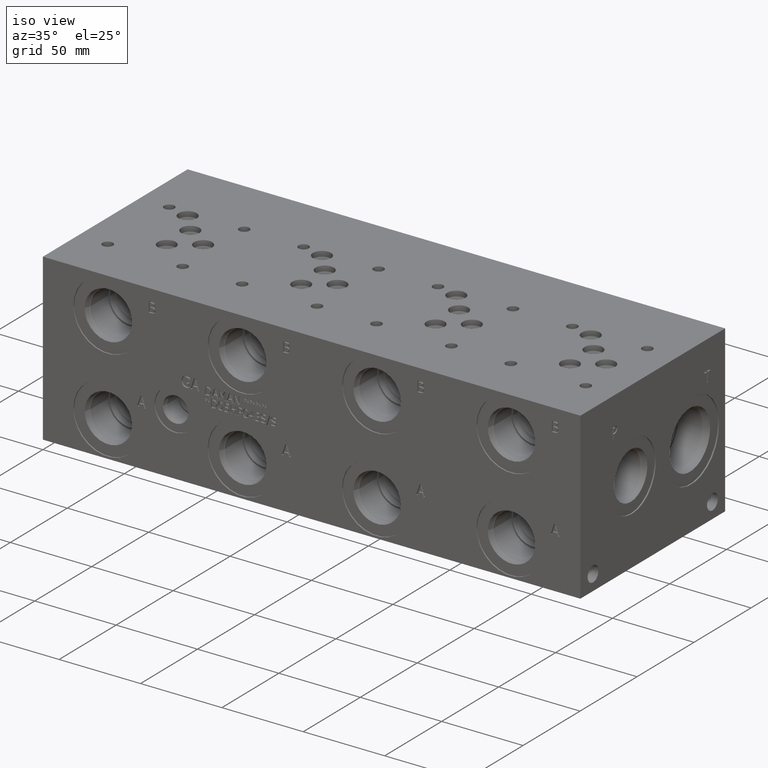
[diagram: clean part render]
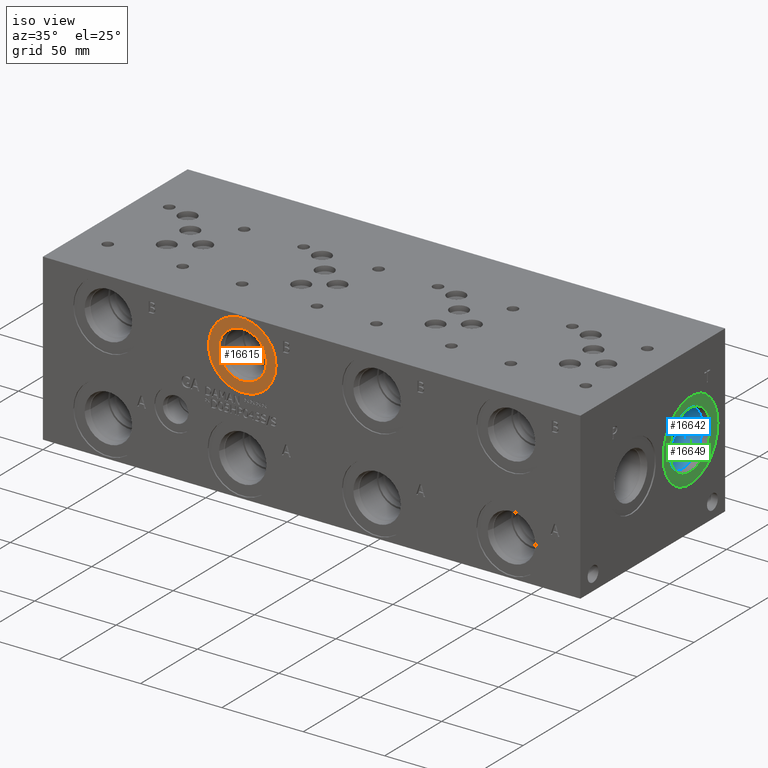
[diagram: same view with three faces highlighted in distinct colors, each labeled with its STEP entity id]
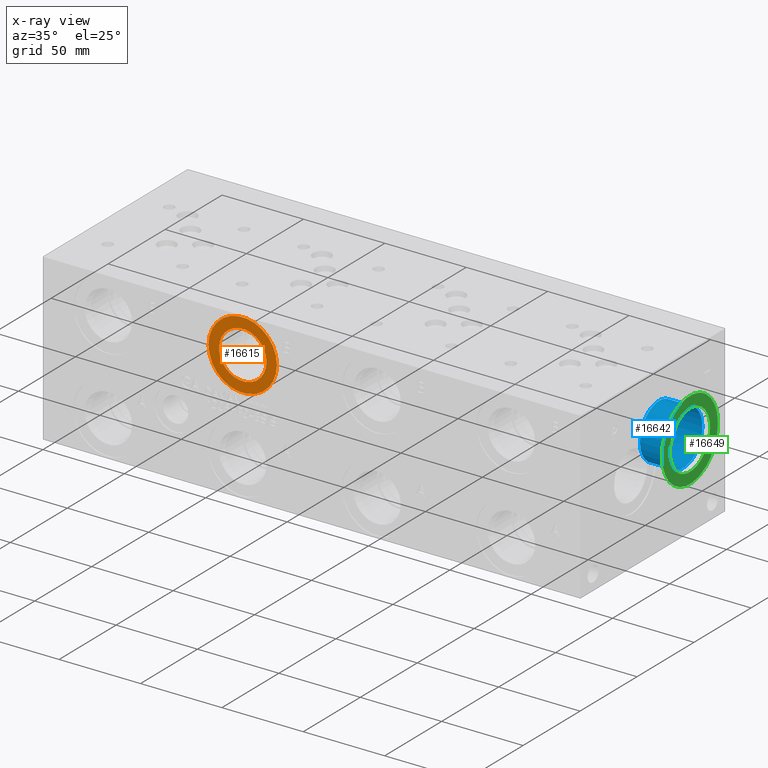
[diagram: x-ray of the same camera — body ghosted, the three highlighted faces saturated]
A machine part, iso view with three faces highlighted in distinct colors.
The next image is the same camera in x-ray (body ghosted, the three faces saturated) — at least one of them is partly hidden behind the body in this view.
Their STEP definitions:

[orange] entity #16615 — the highlighted planar face has unit normal (0, 1, 0).
#558=CIRCLE('',#17431,21.0185);
#559=CIRCLE('',#17432,21.0185);
#560=CIRCLE('',#17434,14.5923);
#561=CIRCLE('',#17435,14.5923);
#1400=FACE_BOUND('',#3084,.T.);
#2121=FACE_OUTER_BOUND('',#3083,.T.);
#3083=EDGE_LOOP('',(#13792,#13793));
#3084=EDGE_LOOP('',(#13794,#13795));
#7512=VERTEX_POINT('',#28033);
#7513=VERTEX_POINT('',#28035);
#7514=VERTEX_POINT('',#28039);
#7515=VERTEX_POINT('',#28040);
#9714=EDGE_CURVE('',#7512,#7513,#558,.T.);
#9715=EDGE_CURVE('',#7513,#7512,#559,.T.);
#9716=EDGE_CURVE('',#7514,#7515,#560,.T.);
#9717=EDGE_CURVE('',#7515,#7514,#561,.T.);
#13792=ORIENTED_EDGE('',*,*,#9715,.F.);
#13793=ORIENTED_EDGE('',*,*,#9714,.F.);
#13794=ORIENTED_EDGE('',*,*,#9716,.T.);
#13795=ORIENTED_EDGE('',*,*,#9717,.T.);
#15345=PLANE('',#17433);
#16615=ADVANCED_FACE('',(#2121,#1400),#15345,.F.);
#17431=AXIS2_PLACEMENT_3D('',#28036,#20444,#20445);
#17432=AXIS2_PLACEMENT_3D('',#28037,#20446,#20447);
#17433=AXIS2_PLACEMENT_3D('',#28038,#20448,#20449);
#17434=AXIS2_PLACEMENT_3D('',#28041,#20450,#20451);
#17435=AXIS2_PLACEMENT_3D('',#28042,#20452,#20453);
#20444=DIRECTION('center_axis',(0.,1.,0.));
#20445=DIRECTION('ref_axis',(1.,0.,0.));
#20446=DIRECTION('center_axis',(0.,1.,0.));
#20447=DIRECTION('ref_axis',(1.,0.,0.));
#20448=DIRECTION('center_axis',(0.,1.,0.));
#20449=DIRECTION('ref_axis',(0.,0.,1.));
#20450=DIRECTION('center_axis',(0.,1.,0.));
#20451=DIRECTION('ref_axis',(1.,0.,0.));
#20452=DIRECTION('center_axis',(0.,1.,0.));
#20453=DIRECTION('ref_axis',(1.,0.,0.));
#28033=CARTESIAN_POINT('',(101.2063,0.7874,79.375));
#28035=CARTESIAN_POINT('',(143.2433,0.7874,79.375));
#28036=CARTESIAN_POINT('Origin',(122.2248,0.7874,79.375));
#28037=CARTESIAN_POINT('Origin',(122.2248,0.7874,79.375));
#28038=CARTESIAN_POINT('Origin',(136.8171,0.7874,79.375));
#28039=CARTESIAN_POINT('',(136.8171,0.7874,79.375));
#28040=CARTESIAN_POINT('',(107.6325,0.7874,79.375));
#28041=CARTESIAN_POINT('Origin',(122.2248,0.7874,79.375));
#28042=CARTESIAN_POINT('Origin',(122.2248,0.7874,79.375));

[blue] entity #16642 — the highlighted cylindrical surface (bore or boss wall) has radius 16.6751 mm, axis along (1, 0, 0).
#141=CYLINDRICAL_SURFACE('',#17504,16.6751);
#601=CIRCLE('',#17501,16.6751);
#602=CIRCLE('',#17502,16.6751);
#604=CIRCLE('',#17505,16.6751);
#2148=FACE_OUTER_BOUND('',#3116,.T.);
#3116=EDGE_LOOP('',(#13923,#13924,#13925,#13926,#13927));
#4677=LINE('',#28180,#6135);
#6135=VECTOR('',#20615,16.6751);
#7558=VERTEX_POINT('',#28171);
#7559=VERTEX_POINT('',#28172);
#7561=VERTEX_POINT('',#28178);
#9778=EDGE_CURVE('',#7558,#7559,#601,.T.);
#9779=EDGE_CURVE('',#7559,#7558,#602,.T.);
#9781=EDGE_CURVE('',#7561,#7561,#604,.T.);
#9782=EDGE_CURVE('',#7561,#7559,#4677,.T.);
#13923=ORIENTED_EDGE('',*,*,#9781,.F.);
#13924=ORIENTED_EDGE('',*,*,#9782,.T.);
#13925=ORIENTED_EDGE('',*,*,#9778,.F.);
#13926=ORIENTED_EDGE('',*,*,#9779,.F.);
#13927=ORIENTED_EDGE('',*,*,#9782,.F.);
#16642=ADVANCED_FACE('',(#2148),#141,.F.);
#17501=AXIS2_PLACEMENT_3D('',#28173,#20605,#20606);
#17502=AXIS2_PLACEMENT_3D('',#28174,#20607,#20608);
#17504=AXIS2_PLACEMENT_3D('',#28177,#20611,#20612);
#17505=AXIS2_PLACEMENT_3D('',#28179,#20613,#20614);
#20605=DIRECTION('center_axis',(1.,0.,0.));
#20606=DIRECTION('ref_axis',(0.,1.,0.));
#20607=DIRECTION('center_axis',(1.,0.,0.));
#20608=DIRECTION('ref_axis',(0.,1.,0.));
#20611=DIRECTION('center_axis',(1.,0.,0.));
#20612=DIRECTION('ref_axis',(0.,1.,0.));
#20613=DIRECTION('center_axis',(-1.,0.,0.));
#20614=DIRECTION('ref_axis',(0.,1.,0.));
#20615=DIRECTION('',(-1.,0.,0.));
#28171=CARTESIAN_POINT('',(310.3626,113.9317,50.8));
#28172=CARTESIAN_POINT('',(310.3626,80.5815,50.8));
#28173=CARTESIAN_POINT('Origin',(310.3626,97.2566,50.8));
#28174=CARTESIAN_POINT('Origin',(310.3626,97.2566,50.8));
#28177=CARTESIAN_POINT('Origin',(320.2813,97.2566,50.8));
#28178=CARTESIAN_POINT('',(325.376321153229,80.5815,50.8));
#28179=CARTESIAN_POINT('Origin',(325.376321153229,97.2566,50.8));
#28180=CARTESIAN_POINT('',(320.2813,80.5815,50.8));

[green] entity #16649 — the highlighted planar face has unit normal (1, 0, 0).
#611=CIRCLE('',#17519,24.5618);
#612=CIRCLE('',#17520,24.5618);
#613=CIRCLE('',#17521,17.7546);
#1406=FACE_BOUND('',#3124,.T.);
#2155=FACE_OUTER_BOUND('',#3123,.T.);
#3123=EDGE_LOOP('',(#13955,#13956));
#3124=EDGE_LOOP('',(#13957));
#7569=VERTEX_POINT('',#28207);
#7570=VERTEX_POINT('',#28208);
#7571=VERTEX_POINT('',#28211);
#9795=EDGE_CURVE('',#7569,#7570,#611,.T.);
#9796=EDGE_CURVE('',#7570,#7569,#612,.T.);
#9797=EDGE_CURVE('',#7571,#7571,#613,.T.);
#13955=ORIENTED_EDGE('',*,*,#9795,.T.);
#13956=ORIENTED_EDGE('',*,*,#9796,.T.);
#13957=ORIENTED_EDGE('',*,*,#9797,.F.);
#15351=PLANE('',#17518);
#16649=ADVANCED_FACE('',(#2155,#1406),#15351,.T.);
#17518=AXIS2_PLACEMENT_3D('',#28206,#20646,#20647);
#17519=AXIS2_PLACEMENT_3D('',#28209,#20648,#20649);
#17520=AXIS2_PLACEMENT_3D('',#28210,#20650,#20651);
#17521=AXIS2_PLACEMENT_3D('',#28212,#20652,#20653);
#20646=DIRECTION('center_axis',(1.,0.,0.));
#20647=DIRECTION('ref_axis',(0.,1.,0.));
#20648=DIRECTION('center_axis',(1.,0.,0.));
#20649=DIRECTION('ref_axis',(0.,1.,0.));
#20650=DIRECTION('center_axis',(1.,0.,0.));
#20651=DIRECTION('ref_axis',(0.,1.,0.));
#20652=DIRECTION('center_axis',(1.,0.,0.));
#20653=DIRECTION('ref_axis',(0.,1.,0.));
#28206=CARTESIAN_POINT('Origin',(329.4126,97.2566,50.8));
#28207=CARTESIAN_POINT('',(329.4126,121.8184,50.8));
#28208=CARTESIAN_POINT('',(329.4126,72.6948,50.8));
#28209=CARTESIAN_POINT('Origin',(329.4126,97.2566,50.8));
#28210=CARTESIAN_POINT('Origin',(329.4126,97.2566,50.8));
#28211=CARTESIAN_POINT('',(329.4126,79.502,50.8));
#28212=CARTESIAN_POINT('Origin',(329.4126,97.2566,50.8));